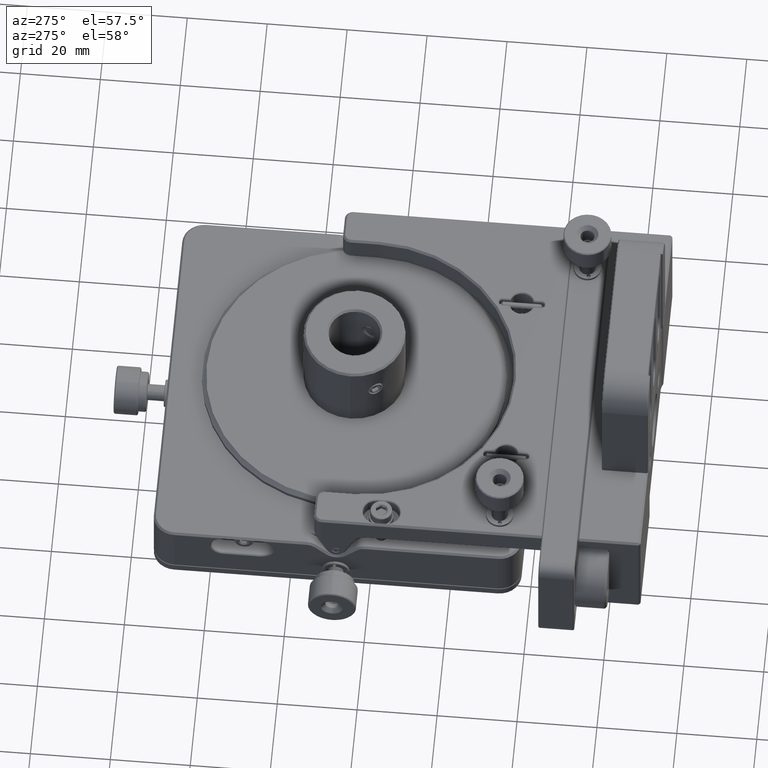
[diagram: clean part render]
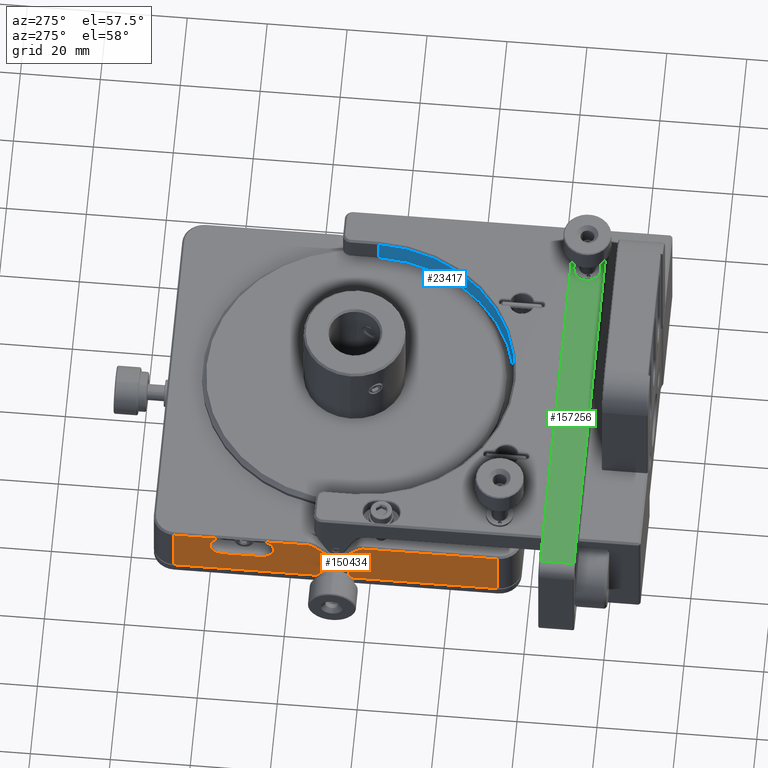
[diagram: same view with three faces highlighted in distinct colors, each labeled with its STEP entity id]
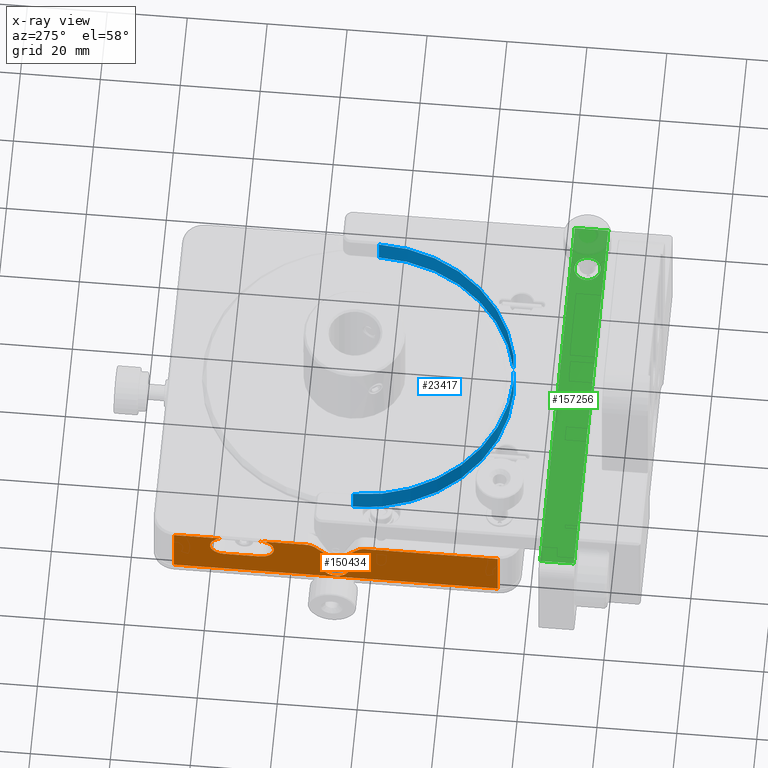
[diagram: x-ray of the same camera — body ghosted, the three highlighted faces saturated]
A machine part, auxiliary view with three faces highlighted in distinct colors.
The next image is the same camera in x-ray (body ghosted, the three faces saturated) — at least one of them is partly hidden behind the body in this view.
Their STEP definitions:

[orange] entity #150434 — the highlighted planar face has unit normal (1, 0, -0).
#100 = AXIS2_PLACEMENT_3D ( 'NONE', #174411, #34985, #133475 ) ;
#1971 = VERTEX_POINT ( 'NONE', #159030 ) ;
#2141 = VERTEX_POINT ( 'NONE', #158157 ) ;
#8096 = EDGE_CURVE ( 'NONE', #164468, #2141, #123785, .T. ) ;
#8894 = VERTEX_POINT ( 'NONE', #30197 ) ;
#10969 = DIRECTION ( 'NONE',  ( 1.508455196501571429E-16, -1.000000000000000000, 0.000000000000000000 ) ) ;
#13270 = VERTEX_POINT ( 'NONE', #100142 ) ;
#16547 = EDGE_CURVE ( 'NONE', #113026, #134084, #133839, .T. ) ;
#17143 = CIRCLE ( 'NONE', #100, 3.500000000000031086 ) ;
#20532 = CARTESIAN_POINT ( 'NONE',  ( -45.99999999999999289, 87.29999999999999716, -4.300000000000023803 ) ) ;
#20990 = CARTESIAN_POINT ( 'NONE',  ( -46.00000000000000000, 108.8000000000000114, 3.200000000000008171 ) ) ;
#22746 = EDGE_CURVE ( 'NONE', #167954, #113026, #117835, .T. ) ;
#23992 = EDGE_CURVE ( 'NONE', #168809, #129038, #94210, .T. ) ;
#24321 = CARTESIAN_POINT ( 'NONE',  ( -46.00000000000000000, 114.2999999999999972, -11.04999999999997762 ) ) ;
#27549 = CIRCLE ( 'NONE', #123867, 3.300000000000003375 ) ;
#28039 = DIRECTION ( 'NONE',  ( 0.000000000000000000, -0.000000000000000000, 1.000000000000000000 ) ) ;
#28349 = CARTESIAN_POINT ( 'NONE',  ( -46.00000000000000000, 108.8000000000000114, 2.699999999999993960 ) ) ;
#28784 = LINE ( 'NONE', #152462, #81946 ) ;
#29624 = CIRCLE ( 'NONE', #88923, 3.300000000000011369 ) ;
#30197 = CARTESIAN_POINT ( 'NONE',  ( -46.00000000000000000, 87.29999999999999716, 2.699999999999993960 ) ) ;
#30672 = LINE ( 'NONE', #123265, #34346 ) ;
#33342 = DIRECTION ( 'NONE',  ( -1.508455196501571429E-16, 1.000000000000000000, 0.000000000000000000 ) ) ;
#34346 = VECTOR ( 'NONE', #28039, 1000.000000000000000 ) ;
#34985 = DIRECTION ( 'NONE',  ( 1.000000000000000000, 1.508455196501571429E-16, -0.000000000000000000 ) ) ;
#35450 = CARTESIAN_POINT ( 'NONE',  ( -45.99999999999999289, 75.50243866176396068, 2.699999999999993960 ) ) ;
#35741 = CARTESIAN_POINT ( 'NONE',  ( -46.00000000000000000, 68.60827010992196051, -4.014430104330640070 ) ) ;
#36822 = CARTESIAN_POINT ( 'NONE',  ( -45.99999999999999289, 61.09756133823603363, 2.699999999999993960 ) ) ;
#37405 = AXIS2_PLACEMENT_3D ( 'NONE', #130247, #127644, #168576 ) ;
#41333 = EDGE_CURVE ( 'NONE', #56994, #130566, #71605, .T. ) ;
#43178 = CARTESIAN_POINT ( 'NONE',  ( -46.00000000000000000, 96.29999999999999716, 2.699999999999993072 ) ) ;
#43839 = CARTESIAN_POINT ( 'NONE',  ( -45.99999999999999289, 62.86532829120238119, 1.967766952966365723 ) ) ;
#48709 = EDGE_LOOP ( 'NONE', ( #146697, #95859, #86930, #144661, #113898, #60256, #130305, #164959, #132672, #53605, #175252, #164774, #129023, #117660 ) ) ;
#51145 = ORIENTED_EDGE ( 'NONE', *, *, #8096, .T. ) ;
#52310 = DIRECTION ( 'NONE',  ( 0.000000000000000000, 1.000000000000000000, 0.000000000000000000 ) ) ;
#53357 = CARTESIAN_POINT ( 'NONE',  ( -46.00000000000000000, 96.29999999999999716, -0.7999999999999929390 ) ) ;
#53605 = ORIENTED_EDGE ( 'NONE', *, *, #155031, .T. ) ;
#55141 = DIRECTION ( 'NONE',  ( 1.000000000000000000, 1.508455196501571429E-16, -0.000000000000000000 ) ) ;
#56994 = VERTEX_POINT ( 'NONE', #125495 ) ;
#60256 = ORIENTED_EDGE ( 'NONE', *, *, #82894, .T. ) ;
#61492 = AXIS2_PLACEMENT_3D ( 'NONE', #53357, #55141, #150352 ) ;
#63920 = CARTESIAN_POINT ( 'NONE',  ( -45.99999999999999289, 68.29999999999998295, 1.200000000000008393 ) ) ;
#64047 = PLANE ( 'NONE',  #84562 ) ;
#64506 = VECTOR ( 'NONE', #79424, 1000.000000000000000 ) ;
#65384 = EDGE_CURVE ( 'NONE', #132552, #1971, #29624, .T. ) ;
#65476 = CARTESIAN_POINT ( 'NONE',  ( -46.00000000000000000, 68.29999999999998295, -7.299999999999990052 ) ) ;
#66552 = DIRECTION ( 'NONE',  ( 1.000000000000000000, 1.508455196501571429E-16, -0.000000000000000000 ) ) ;
#68461 = AXIS2_PLACEMENT_3D ( 'NONE', #114718, #129826, #102233 ) ;
#69710 = LINE ( 'NONE', #123995, #174894 ) ;
#71605 = CIRCLE ( 'NONE', #37405, 2.499999999999988454 ) ;
#72341 = ORIENTED_EDGE ( 'NONE', *, *, #168272, .T. ) ;
#73751 = DIRECTION ( 'NONE',  ( -1.066638898562349011E-16, 0.7071067811865487940, -0.7071067811865463515 ) ) ;
#74429 = EDGE_CURVE ( 'NONE', #127835, #13270, #28784, .T. ) ;
#79207 = DIRECTION ( 'NONE',  ( 1.000000000000000000, 2.918654602595743127E-16, -3.061591823562393972E-16 ) ) ;
#79424 = DIRECTION ( 'NONE',  ( 0.000000000000000000, 0.000000000000000000, -1.000000000000000000 ) ) ;
#81227 = AXIS2_PLACEMENT_3D ( 'NONE', #175321, #79207, #174429 ) ;
#81276 = VERTEX_POINT ( 'NONE', #124089 ) ;
#81878 = EDGE_CURVE ( 'NONE', #8894, #127835, #17143, .T. ) ;
#81946 = VECTOR ( 'NONE', #83065, 1000.000000000000000 ) ;
#82894 = EDGE_CURVE ( 'NONE', #134084, #132552, #114665, .T. ) ;
#83065 = DIRECTION ( 'NONE',  ( -1.508455196501571429E-16, 1.000000000000000000, -9.637352644315595243E-17 ) ) ;
#84562 = AXIS2_PLACEMENT_3D ( 'NONE', #155789, #118348, #87258 ) ;
#86930 = ORIENTED_EDGE ( 'NONE', *, *, #123829, .T. ) ;
#87258 = DIRECTION ( 'NONE',  ( -1.508455196501571429E-16, 1.000000000000000000, 0.000000000000000000 ) ) ;
#88255 = VECTOR ( 'NONE', #73751, 1000.000000000000000 ) ;
#88923 = AXIS2_PLACEMENT_3D ( 'NONE', #63920, #66552, #52310 ) ;
#90754 = FACE_BOUND ( 'NONE', #151788, .T. ) ;
#92383 = VERTEX_POINT ( 'NONE', #133811 ) ;
#92842 = EDGE_CURVE ( 'NONE', #1971, #56994, #69710, .T. ) ;
#94210 = LINE ( 'NONE', #28349, #158960 ) ;
#94809 = DIRECTION ( 'NONE',  ( 1.000000000000000000, 2.918654602595743127E-16, -3.061591823562393972E-16 ) ) ;
#95859 = ORIENTED_EDGE ( 'NONE', *, *, #169899, .T. ) ;
#98154 = DIRECTION ( 'NONE',  ( -1.066638898562349011E-16, 0.7071067811865487940, 0.7071067811865463515 ) ) ;
#98331 = CARTESIAN_POINT ( 'NONE',  ( -45.99999999999999289, 65.96654762208439138, -1.133452377915612486 ) ) ;
#100142 = CARTESIAN_POINT ( 'NONE',  ( -46.00000000000000000, 96.29999999999999716, -4.300000000000022027 ) ) ;
#100965 = CARTESIAN_POINT ( 'NONE',  ( -46.00000000000000000, 108.8000000000000114, 2.699999999999993960 ) ) ;
#101850 = LINE ( 'NONE', #100965, #167404 ) ;
#102233 = DIRECTION ( 'NONE',  ( 0.000000000000000000, 1.000000000000000000, 1.775923158531264467E-14 ) ) ;
#113026 = VERTEX_POINT ( 'NONE', #145191 ) ;
#113368 = VECTOR ( 'NONE', #145416, 1000.000000000000000 ) ;
#113898 = ORIENTED_EDGE ( 'NONE', *, *, #16547, .T. ) ;
#114665 = LINE ( 'NONE', #167227, #88255 ) ;
#114718 = CARTESIAN_POINT ( 'NONE',  ( -45.99999999999999289, 61.09756133823603363, 0.2000000000000083378 ) ) ;
#117660 = ORIENTED_EDGE ( 'NONE', *, *, #23992, .T. ) ;
#117835 = LINE ( 'NONE', #36822, #113368 ) ;
#118348 = DIRECTION ( 'NONE',  ( 1.000000000000000000, 1.508455196501571429E-16, -0.000000000000000000 ) ) ;
#123265 = CARTESIAN_POINT ( 'NONE',  ( -45.99999999999998579, 27.80000000000000426, 3.200000000000008171 ) ) ;
#123785 = CIRCLE ( 'NONE', #81227, 3.300000000000003375 ) ;
#123829 = EDGE_CURVE ( 'NONE', #81276, #167954, #30672, .T. ) ;
#123867 = AXIS2_PLACEMENT_3D ( 'NONE', #65476, #94809, #174049 ) ;
#123995 = CARTESIAN_POINT ( 'NONE',  ( -46.00000000000000000, 94.63345237791568820, 22.86654762208438996 ) ) ;
#124089 = CARTESIAN_POINT ( 'NONE',  ( -45.99999999999998579, 27.80000000000000426, -11.04999999999997762 ) ) ;
#125495 = CARTESIAN_POINT ( 'NONE',  ( -45.99999999999999289, 73.73467170879759180, 1.967766952966369942 ) ) ;
#127644 = DIRECTION ( 'NONE',  ( -1.000000000000000000, -1.508455196501571429E-16, 0.000000000000000000 ) ) ;
#127835 = VERTEX_POINT ( 'NONE', #20532 ) ;
#129023 = ORIENTED_EDGE ( 'NONE', *, *, #160399, .T. ) ;
#129038 = VERTEX_POINT ( 'NONE', #160224 ) ;
#129580 = VECTOR ( 'NONE', #10969, 1000.000000000000000 ) ;
#129826 = DIRECTION ( 'NONE',  ( -1.000000000000000000, -1.508455196501571429E-16, 0.000000000000000000 ) ) ;
#130247 = CARTESIAN_POINT ( 'NONE',  ( -45.99999999999999289, 75.50243866176396068, 0.2000000000000083378 ) ) ;
#130305 = ORIENTED_EDGE ( 'NONE', *, *, #65384, .T. ) ;
#130566 = VERTEX_POINT ( 'NONE', #35450 ) ;
#132552 = VERTEX_POINT ( 'NONE', #98331 ) ;
#132672 = ORIENTED_EDGE ( 'NONE', *, *, #41333, .T. ) ;
#133475 = DIRECTION ( 'NONE',  ( 0.000000000000000000, 1.000000000000000000, 0.000000000000000000 ) ) ;
#133811 = CARTESIAN_POINT ( 'NONE',  ( -46.00000000000000000, 108.8000000000000114, -11.04999999999997762 ) ) ;
#133839 = CIRCLE ( 'NONE', #68461, 2.499999999999988454 ) ;
#134084 = VERTEX_POINT ( 'NONE', #43839 ) ;
#143926 = CIRCLE ( 'NONE', #61492, 3.500000000000031086 ) ;
#144661 = ORIENTED_EDGE ( 'NONE', *, *, #22746, .T. ) ;
#145062 = FACE_OUTER_BOUND ( 'NONE', #48709, .T. ) ;
#145191 = CARTESIAN_POINT ( 'NONE',  ( -45.99999999999999289, 61.09756133823603363, 2.699999999999994849 ) ) ;
#145416 = DIRECTION ( 'NONE',  ( -1.508455196501571429E-16, 1.000000000000000000, 0.000000000000000000 ) ) ;
#146697 = ORIENTED_EDGE ( 'NONE', *, *, #163274, .T. ) ;
#147067 = LINE ( 'NONE', #20990, #64506 ) ;
#148888 = LINE ( 'NONE', #24321, #129580 ) ;
#150352 = DIRECTION ( 'NONE',  ( 0.000000000000000000, 1.000000000000000000, 0.000000000000000000 ) ) ;
#150434 = ADVANCED_FACE ( 'NONE', ( #90754, #145062 ), #64047, .F. ) ;
#151788 = EDGE_LOOP ( 'NONE', ( #51145, #72341 ) ) ;
#152462 = CARTESIAN_POINT ( 'NONE',  ( -46.00000000000000000, 114.2999999999999972, -4.300000000000025580 ) ) ;
#155031 = EDGE_CURVE ( 'NONE', #130566, #8894, #101850, .T. ) ;
#155789 = CARTESIAN_POINT ( 'NONE',  ( -46.00000000000000000, 114.2999999999999972, 3.200000000000008171 ) ) ;
#158157 = CARTESIAN_POINT ( 'NONE',  ( -46.00000000000000000, 67.99172989007800538, -10.58556989566934092 ) ) ;
#158960 = VECTOR ( 'NONE', #164527, 1000.000000000000000 ) ;
#159030 = CARTESIAN_POINT ( 'NONE',  ( -45.99999999999999289, 70.63345237791560294, -1.133452377915610709 ) ) ;
#160224 = CARTESIAN_POINT ( 'NONE',  ( -46.00000000000000000, 108.8000000000000114, 2.699999999999993960 ) ) ;
#160399 = EDGE_CURVE ( 'NONE', #13270, #168809, #143926, .T. ) ;
#160691 = CARTESIAN_POINT ( 'NONE',  ( -45.99999999999998579, 27.80000000000000426, 2.699999999999993960 ) ) ;
#163274 = EDGE_CURVE ( 'NONE', #129038, #92383, #147067, .T. ) ;
#164468 = VERTEX_POINT ( 'NONE', #35741 ) ;
#164527 = DIRECTION ( 'NONE',  ( -1.508455196501571429E-16, 1.000000000000000000, 0.000000000000000000 ) ) ;
#164774 = ORIENTED_EDGE ( 'NONE', *, *, #74429, .T. ) ;
#164959 = ORIENTED_EDGE ( 'NONE', *, *, #92842, .T. ) ;
#167227 = CARTESIAN_POINT ( 'NONE',  ( -45.99999999999999289, 87.96654762208446243, -23.13345237791561715 ) ) ;
#167404 = VECTOR ( 'NONE', #33342, 1000.000000000000000 ) ;
#167954 = VERTEX_POINT ( 'NONE', #160691 ) ;
#168272 = EDGE_CURVE ( 'NONE', #2141, #164468, #27549, .T. ) ;
#168576 = DIRECTION ( 'NONE',  ( 0.000000000000000000, 1.000000000000000000, -1.065770735553255750E-14 ) ) ;
#168809 = VERTEX_POINT ( 'NONE', #43178 ) ;
#169899 = EDGE_CURVE ( 'NONE', #92383, #81276, #148888, .T. ) ;
#174049 = DIRECTION ( 'NONE',  ( 0.000000000000000000, -0.09341518482484462149, -0.9956272411119234667 ) ) ;
#174411 = CARTESIAN_POINT ( 'NONE',  ( -45.99999999999999289, 87.29999999999999716, -0.7999999999999903855 ) ) ;
#174429 = DIRECTION ( 'NONE',  ( 0.000000000000000000, -0.09341518482484462149, -0.9956272411119234667 ) ) ;
#174894 = VECTOR ( 'NONE', #98154, 1000.000000000000000 ) ;
#175252 = ORIENTED_EDGE ( 'NONE', *, *, #81878, .T. ) ;
#175321 = CARTESIAN_POINT ( 'NONE',  ( -46.00000000000000000, 68.29999999999998295, -7.299999999999990052 ) ) ;

[blue] entity #23417 — the highlighted cylindrical surface (partial cylindrical patch) has radius 37 mm, axis along (-0, -0, -1).
#1266 = VERTEX_POINT ( 'NONE', #154666 ) ;
#2670 = DIRECTION ( 'NONE',  ( -1.000000000000000000, 0.000000000000000000, 0.000000000000000000 ) ) ;
#5723 = CIRCLE ( 'NONE', #113707, 37.00000000000000000 ) ;
#12936 = DIRECTION ( 'NONE',  ( -0.000000000000000000, -0.000000000000000000, 1.000000000000000000 ) ) ;
#16130 = DIRECTION ( 'NONE',  ( -0.000000000000000000, -0.000000000000000000, -1.000000000000000000 ) ) ;
#16689 = CARTESIAN_POINT ( 'NONE',  ( 36.99999999999999289, 64.80000000000001137, 13.70000000000000462 ) ) ;
#23417 = ADVANCED_FACE ( 'NONE', ( #92419 ), #36405, .F. ) ;
#36405 = CYLINDRICAL_SURFACE ( 'NONE', #119202, 37.00000000000000000 ) ;
#38148 = CARTESIAN_POINT ( 'NONE',  ( -4.119968255444916849E-15, 64.80000000000001137, 14.20000000000000462 ) ) ;
#42736 = EDGE_CURVE ( 'NONE', #62705, #172176, #55402, .T. ) ;
#45443 = CARTESIAN_POINT ( 'NONE',  ( 36.99999999999999289, 64.80000000000001137, 14.20000000000000462 ) ) ;
#52382 = DIRECTION ( 'NONE',  ( -0.000000000000000000, -0.000000000000000000, -1.000000000000000000 ) ) ;
#54122 = ORIENTED_EDGE ( 'NONE', *, *, #80588, .T. ) ;
#55402 = LINE ( 'NONE', #109681, #100052 ) ;
#55647 = CARTESIAN_POINT ( 'NONE',  ( -4.119968255444916849E-15, 64.80000000000001137, 13.70000000000000462 ) ) ;
#61391 = VECTOR ( 'NONE', #16130, 1000.000000000000000 ) ;
#62705 = VERTEX_POINT ( 'NONE', #136908 ) ;
#77758 = ORIENTED_EDGE ( 'NONE', *, *, #42736, .F. ) ;
#80588 = EDGE_CURVE ( 'NONE', #1266, #172176, #5723, .T. ) ;
#92419 = FACE_OUTER_BOUND ( 'NONE', #150313, .T. ) ;
#95258 = ORIENTED_EDGE ( 'NONE', *, *, #139299, .T. ) ;
#100052 = VECTOR ( 'NONE', #163999, 1000.000000000000000 ) ;
#102675 = CARTESIAN_POINT ( 'NONE',  ( -37.00000000000000711, 64.80000000000001137, 7.700000000000005507 ) ) ;
#104241 = AXIS2_PLACEMENT_3D ( 'NONE', #55647, #12936, #107281 ) ;
#106415 = VERTEX_POINT ( 'NONE', #16689 ) ;
#107096 = ORIENTED_EDGE ( 'NONE', *, *, #168112, .T. ) ;
#107281 = DIRECTION ( 'NONE',  ( 1.000000000000000000, 0.000000000000000000, 0.000000000000000000 ) ) ;
#109681 = CARTESIAN_POINT ( 'NONE',  ( -37.00000000000000711, 64.80000000000001137, 14.20000000000000462 ) ) ;
#113707 = AXIS2_PLACEMENT_3D ( 'NONE', #137065, #121971, #2670 ) ;
#119202 = AXIS2_PLACEMENT_3D ( 'NONE', #38148, #52382, #147620 ) ;
#121971 = DIRECTION ( 'NONE',  ( 0.000000000000000000, 0.000000000000000000, -1.000000000000000000 ) ) ;
#136908 = CARTESIAN_POINT ( 'NONE',  ( -37.00000000000000711, 64.80000000000001137, 13.70000000000000462 ) ) ;
#137065 = CARTESIAN_POINT ( 'NONE',  ( -4.119968255444916849E-15, 64.80000000000001137, 7.700000000000005507 ) ) ;
#139299 = EDGE_CURVE ( 'NONE', #106415, #1266, #166508, .T. ) ;
#147620 = DIRECTION ( 'NONE',  ( -1.000000000000000000, 0.000000000000000000, 0.000000000000000000 ) ) ;
#150313 = EDGE_LOOP ( 'NONE', ( #77758, #107096, #95258, #54122 ) ) ;
#154666 = CARTESIAN_POINT ( 'NONE',  ( 36.99999999999999289, 64.80000000000001137, 7.700000000000005507 ) ) ;
#163999 = DIRECTION ( 'NONE',  ( -0.000000000000000000, -0.000000000000000000, -1.000000000000000000 ) ) ;
#166508 = LINE ( 'NONE', #45443, #61391 ) ;
#168112 = EDGE_CURVE ( 'NONE', #62705, #106415, #172488, .T. ) ;
#172176 = VERTEX_POINT ( 'NONE', #102675 ) ;
#172488 = CIRCLE ( 'NONE', #104241, 37.00000000000000000 ) ;

[green] entity #157256 — the highlighted planar face has unit normal (0, 0, -1).
#2588 = ORIENTED_EDGE ( 'NONE', *, *, #150398, .T. ) ;
#5042 = AXIS2_PLACEMENT_3D ( 'NONE', #89003, #141562, #143306 ) ;
#5918 = ORIENTED_EDGE ( 'NONE', *, *, #147515, .T. ) ;
#13797 = VERTEX_POINT ( 'NONE', #120485 ) ;
#15588 = CARTESIAN_POINT ( 'NONE',  ( -52.99999999999998579, 8.150000000000000355, 14.19999999999999929 ) ) ;
#16428 = EDGE_LOOP ( 'NONE', ( #86365, #154112, #5918, #87543 ) ) ;
#20750 = LINE ( 'NONE', #75042, #112948 ) ;
#22819 = ORIENTED_EDGE ( 'NONE', *, *, #140706, .T. ) ;
#24636 = LINE ( 'NONE', #150761, #160608 ) ;
#25285 = CARTESIAN_POINT ( 'NONE',  ( -52.99999999999998579, 16.54999999999999716, 14.19999999999999929 ) ) ;
#27785 = CIRCLE ( 'NONE', #5042, 3.300000000000002931 ) ;
#31416 = DIRECTION ( 'NONE',  ( 1.000000000000000000, 0.000000000000000000, 0.000000000000000000 ) ) ;
#33317 = VECTOR ( 'NONE', #70096, 1000.000000000000000 ) ;
#35956 = AXIS2_PLACEMENT_3D ( 'NONE', #157652, #61570, #75787 ) ;
#43493 = VERTEX_POINT ( 'NONE', #85300 ) ;
#43846 = CARTESIAN_POINT ( 'NONE',  ( -46.00000000000000000, 16.80000000000000071, 14.19999999999999929 ) ) ;
#44724 = PLANE ( 'NONE',  #85068 ) ;
#53454 = EDGE_LOOP ( 'NONE', ( #2588, #22819 ) ) ;
#53913 = FACE_OUTER_BOUND ( 'NONE', #16428, .T. ) ;
#54258 = VERTEX_POINT ( 'NONE', #172307 ) ;
#61570 = DIRECTION ( 'NONE',  ( -1.249448669692445141E-17, 6.472454896871882416E-17, -1.000000000000000000 ) ) ;
#66027 = VERTEX_POINT ( 'NONE', #167957 ) ;
#70096 = DIRECTION ( 'NONE',  ( 0.000000000000000000, -1.000000000000000000, -0.000000000000000000 ) ) ;
#70202 = EDGE_CURVE ( 'NONE', #54258, #72179, #20750, .T. ) ;
#72179 = VERTEX_POINT ( 'NONE', #25285 ) ;
#75042 = CARTESIAN_POINT ( 'NONE',  ( -52.99999999999998579, 16.54999999999999716, 14.19999999999999929 ) ) ;
#75787 = DIRECTION ( 'NONE',  ( -0.9818726892370371884, -0.1895416105514258764, 0.000000000000000000 ) ) ;
#85068 = AXIS2_PLACEMENT_3D ( 'NONE', #43846, #125741, #120652 ) ;
#85300 = CARTESIAN_POINT ( 'NONE',  ( 30.75982012551780542, 11.72451268518029188, 14.20000000000000462 ) ) ;
#86365 = ORIENTED_EDGE ( 'NONE', *, *, #106553, .T. ) ;
#87543 = ORIENTED_EDGE ( 'NONE', *, *, #70202, .T. ) ;
#89003 = CARTESIAN_POINT ( 'NONE',  ( 34.00000000000002842, 12.34999999999999787, 14.20000000000000462 ) ) ;
#92628 = EDGE_CURVE ( 'NONE', #108013, #66027, #124888, .T. ) ;
#103862 = DIRECTION ( 'NONE',  ( 0.000000000000000000, 1.000000000000000000, 0.000000000000000000 ) ) ;
#106553 = EDGE_CURVE ( 'NONE', #72179, #108013, #112766, .T. ) ;
#108013 = VERTEX_POINT ( 'NONE', #15588 ) ;
#109915 = CIRCLE ( 'NONE', #35956, 3.300000000000002931 ) ;
#111888 = CARTESIAN_POINT ( 'NONE',  ( -52.99999999999998579, 7.900000000000000355, 14.19999999999999929 ) ) ;
#112766 = LINE ( 'NONE', #111888, #33317 ) ;
#112948 = VECTOR ( 'NONE', #170277, 1000.000000000000000 ) ;
#120485 = CARTESIAN_POINT ( 'NONE',  ( 37.24017987448225853, 12.97548731481970385, 14.20000000000000462 ) ) ;
#120652 = DIRECTION ( 'NONE',  ( -1.000000000000000000, 0.000000000000000000, -0.000000000000000000 ) ) ;
#124888 = LINE ( 'NONE', #150717, #172100 ) ;
#125741 = DIRECTION ( 'NONE',  ( 0.000000000000000000, 0.000000000000000000, -1.000000000000000000 ) ) ;
#135770 = FACE_BOUND ( 'NONE', #53454, .T. ) ;
#140706 = EDGE_CURVE ( 'NONE', #43493, #13797, #109915, .T. ) ;
#141562 = DIRECTION ( 'NONE',  ( -1.249448669692445141E-17, 6.472454896871882416E-17, -1.000000000000000000 ) ) ;
#143306 = DIRECTION ( 'NONE',  ( -0.9818726892370371884, -0.1895416105514258764, 0.000000000000000000 ) ) ;
#147515 = EDGE_CURVE ( 'NONE', #66027, #54258, #24636, .T. ) ;
#150398 = EDGE_CURVE ( 'NONE', #13797, #43493, #27785, .T. ) ;
#150717 = CARTESIAN_POINT ( 'NONE',  ( -46.00000000000000000, 8.150000000000000355, 14.19999999999999929 ) ) ;
#150761 = CARTESIAN_POINT ( 'NONE',  ( 45.75000000000000000, 16.80000000000000071, 14.19999999999999929 ) ) ;
#154112 = ORIENTED_EDGE ( 'NONE', *, *, #92628, .T. ) ;
#157256 = ADVANCED_FACE ( 'NONE', ( #135770, #53913 ), #44724, .F. ) ;
#157652 = CARTESIAN_POINT ( 'NONE',  ( 34.00000000000002842, 12.34999999999999787, 14.20000000000000462 ) ) ;
#160608 = VECTOR ( 'NONE', #103862, 1000.000000000000000 ) ;
#167957 = CARTESIAN_POINT ( 'NONE',  ( 45.75000000000000000, 8.150000000000000355, 14.19999999999999929 ) ) ;
#170277 = DIRECTION ( 'NONE',  ( -1.000000000000000000, 0.000000000000000000, 0.000000000000000000 ) ) ;
#172100 = VECTOR ( 'NONE', #31416, 1000.000000000000000 ) ;
#172307 = CARTESIAN_POINT ( 'NONE',  ( 45.75000000000000000, 16.54999999999999716, 14.19999999999999929 ) ) ;